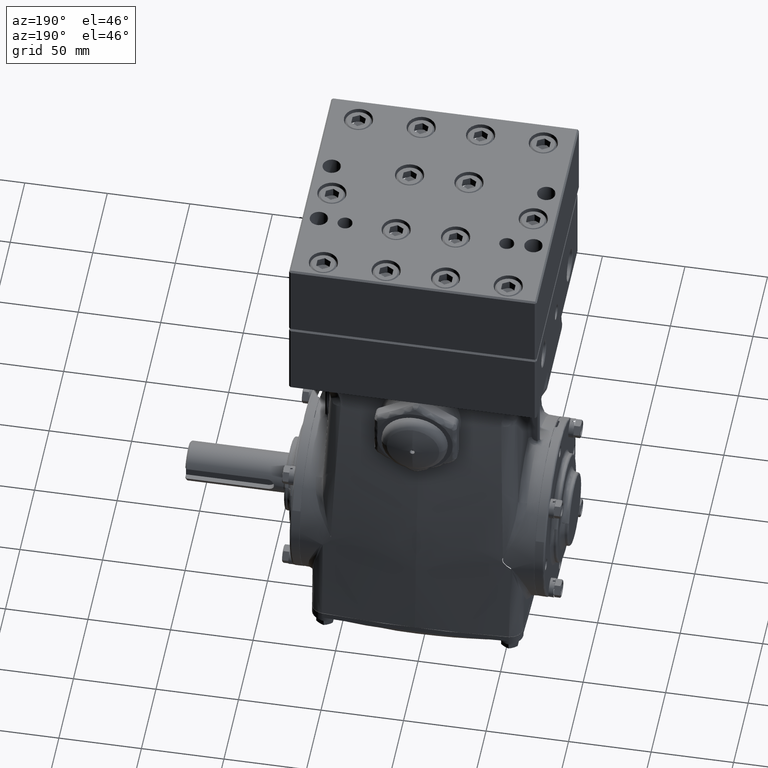
[diagram: clean part render]
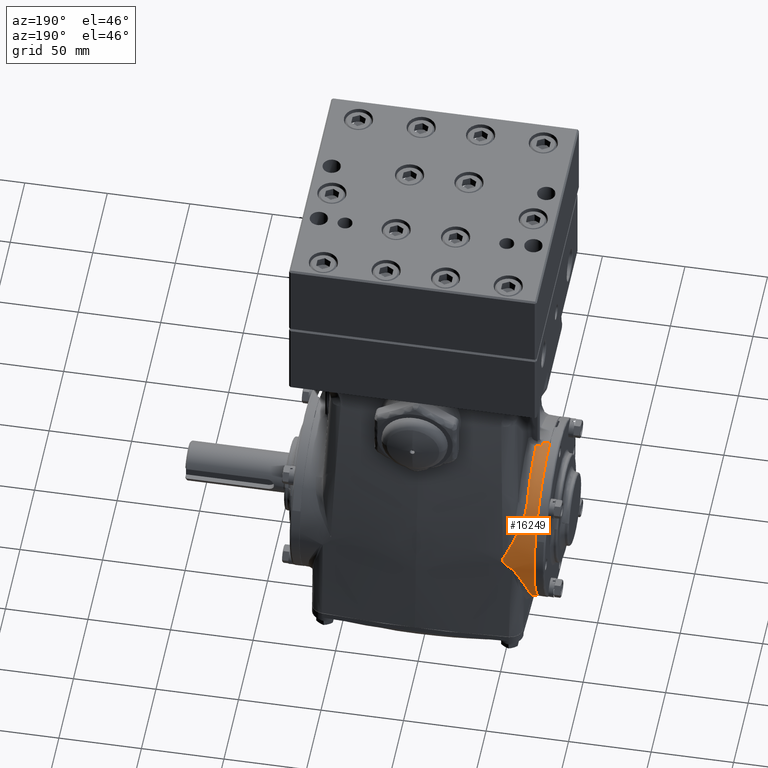
[diagram: same view with one face highlighted and labeled with its STEP entity id]
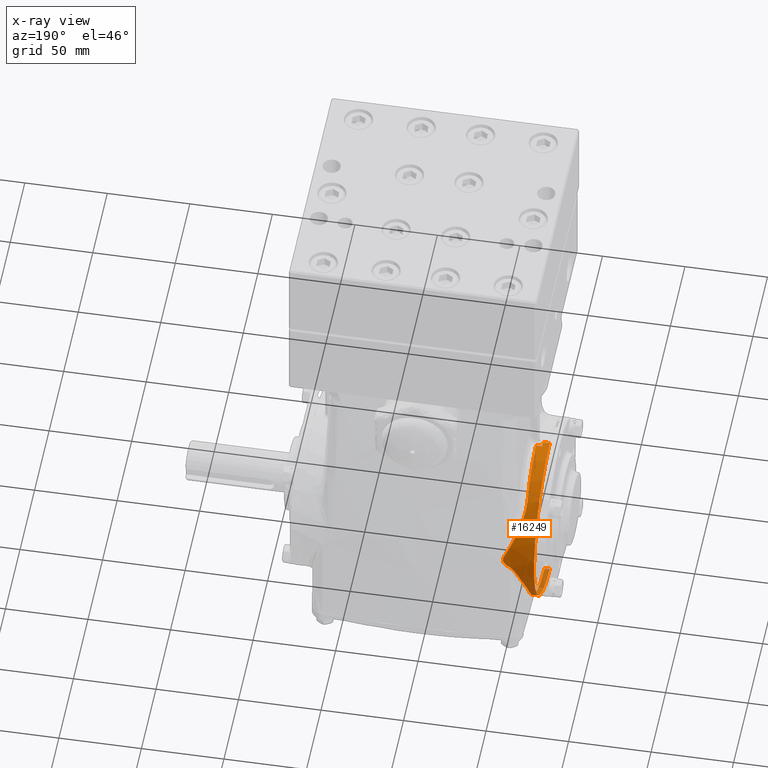
[diagram: x-ray of the same camera — body ghosted, the highlighted face saturated]
A machine part, auxiliary view. The second image highlights one B-rep face of the part: STEP entity #16249.
The next image is the same camera in x-ray: the body ghosted, the highlighted face saturated — about 4% of this face is hidden behind the body in this view.
In plain terms, the highlighted conical surface has half-angle 1.432 deg.
Its self-contained STEP definition (entity closure, byte-faithful):
#144 = CARTESIAN_POINT ( 'NONE',  ( -2.674213100711846813, 0.09220445916533134834, -2.129011245134119878 ) ) ;
#857 = CARTESIAN_POINT ( 'NONE',  ( -2.433689668383447025, 1.814265325992786115, 1.125936763561403042 ) ) ;
#1404 = AXIS2_PLACEMENT_3D ( 'NONE', #52641, #52216, #32115 ) ;
#1411 = EDGE_CURVE ( 'NONE', #45639, #36185, #82076, .T. ) ;
#1506 = CARTESIAN_POINT ( 'NONE',  ( -2.611614131011679607, 1.953446138340607430, -0.8518894944098066579 ) ) ;
#3543 = CARTESIAN_POINT ( 'NONE',  ( -2.795275590551181022, -6.065921084684207584E-32, 0.000000000000000000 ) ) ;
#3583 = CARTESIAN_POINT ( 'NONE',  ( -2.367778985389837665, 2.128595150432312622, -0.1869031318643764594 ) ) ;
#4023 = DIRECTION ( 'NONE',  ( 0.000000000000000000, 5.544652149419485530E-17, 1.000000000000000000 ) ) ;
#4502 = EDGE_LOOP ( 'NONE', ( #15359, #63386, #36855, #76842, #15332, #77794, #68149, #26756, #4894, #40980 ) ) ;
#4894 = ORIENTED_EDGE ( 'NONE', *, *, #38531, .F. ) ;
#4929 = CARTESIAN_POINT ( 'NONE',  ( -2.253474384794850849, 2.139335067782699440, -0.02897014105711796794 ) ) ;
#5088 = CARTESIAN_POINT ( 'NONE',  ( -2.503915078908877323, 1.046633739599244439, 1.859127957345694471 ) ) ;
#5724 = CARTESIAN_POINT ( 'NONE',  ( -2.662967077234981605, 1.021977778432640482, -1.868586286260956575 ) ) ;
#6159 = CARTESIAN_POINT ( 'NONE',  ( -2.672765217870545218, 0.3692536697095555320, -2.097297288627426592 ) ) ;
#6870 = CARTESIAN_POINT ( 'NONE',  ( -2.459356786973228903, 1.762260035235647004, 1.204583766178443538 ) ) ;
#7878 = VECTOR ( 'NONE', #37014, 39.37007874015748143 ) ;
#7926 = CARTESIAN_POINT ( 'NONE',  ( -2.636609844212818743, 1.867263793136128891, -1.025893370523177861 ) ) ;
#8357 = CARTESIAN_POINT ( 'NONE',  ( -2.421371347913226835, 2.114780403209817194, -0.2963912768903275707 ) ) ;
#8719 = AXIS2_PLACEMENT_3D ( 'NONE', #3543, #9140, #42119 ) ;
#9140 = DIRECTION ( 'NONE',  ( 1.000000000000000000, 0.000000000000000000, -4.382719174871368785E-18 ) ) ;
#9607 = CARTESIAN_POINT ( 'NONE',  ( -2.318995028254476232, 2.135545963376624723, -0.1021296468091160703 ) ) ;
#11132 = CARTESIAN_POINT ( 'NONE',  ( -2.066455995131295076, 2.123833213565636147, 0.2952517565246577380 ) ) ;
#12829 = CARTESIAN_POINT ( 'NONE',  ( -2.442660812316131302, 1.797348068771349228, 1.152347434477235533 ) ) ;
#13064 = CARTESIAN_POINT ( 'NONE',  ( -2.578396526791722820, 2.006815403867231229, -0.7184387052893066450 ) ) ;
#13497 = CARTESIAN_POINT ( 'NONE',  ( -2.504932259691062590, 2.075235465970740822, -0.4962313523408666827 ) ) ;
#14707 = VERTEX_POINT ( 'NONE', #78311 ) ;
#15332 = ORIENTED_EDGE ( 'NONE', *, *, #79488, .T. ) ;
#15359 = ORIENTED_EDGE ( 'NONE', *, *, #28878, .F. ) ;
#16249 = ADVANCED_FACE ( 'NONE', ( #41284 ), #70287, .T. ) ;
#16437 = CARTESIAN_POINT ( 'NONE',  ( -2.400645123650289037, 2.121016825696898422, -0.2522796489681907173 ) ) ;
#16458 = CIRCLE ( 'NONE', #76616, 2.125984251968504157 ) ;
#16857 = CARTESIAN_POINT ( 'NONE',  ( -2.289558517188866826, 2.137737940646050383, -0.06239020845379154162 ) ) ;
#17343 = CARTESIAN_POINT ( 'NONE',  ( -2.226839771930154033, 2.140235178456946663, -0.01168351989360031859 ) ) ;
#18604 = CARTESIAN_POINT ( 'NONE',  ( -2.047942761720248583, 2.132668299759482355, 0.2267129716406532658 ) ) ;
#19266 = CARTESIAN_POINT ( 'NONE',  ( -2.268999988163028725, 2.016935381998911758, 0.7222994757913587804 ) ) ;
#19403 = CARTESIAN_POINT ( 'NONE',  ( -2.654131374056228232, 1.366509919037226073, -1.635840865738459105 ) ) ;
#19493 = CARTESIAN_POINT ( 'NONE',  ( -2.637595659439549323, 1.842469967156803001, -1.068593768694690249 ) ) ;
#19502 = CARTESIAN_POINT ( 'NONE',  ( -2.795275590551181022, 1.178784315230913598E-16, 2.125984251968504157 ) ) ;
#19831 = CARTESIAN_POINT ( 'NONE',  ( -2.648813858086076944, 1.534655793872980123, -1.476742552362692695 ) ) ;
#20109 = CARTESIAN_POINT ( 'NONE',  ( -2.467062593457128639, 1.744141122210542738, 1.230340150386247000 ) ) ;
#20546 = CARTESIAN_POINT ( 'NONE',  ( -2.203292787143162457, 2.060377818088014124, 0.5819543737818678730 ) ) ;
#21892 = CARTESIAN_POINT ( 'NONE',  ( -2.053009082777898620, 2.127984562748498121, 0.2659864047022593159 ) ) ;
#24220 = CARTESIAN_POINT ( 'NONE',  ( -2.049233747381173476, 2.135055246015371999, 0.2031275748101670775 ) ) ;
#24378 = CARTESIAN_POINT ( 'NONE',  ( -2.493737155654195625, 0.1328922655559541532, 2.129380987956658089 ) ) ;
#24803 = CARTESIAN_POINT ( 'NONE',  ( -2.494027162866752523, 0.2561653564590450904, 2.121680388083044377 ) ) ;
#25073 = CARTESIAN_POINT ( 'NONE',  ( -2.070415895278807650, 2.139355094043322580, 0.1433268698002481134 ) ) ;
#25232 = CARTESIAN_POINT ( 'NONE',  ( -2.515788031420507664, 1.471742056733628345, 1.543873935989515500 ) ) ;
#25440 = CARTESIAN_POINT ( 'NONE',  ( -2.649348531413402874, 1.518427305832896090, -1.493403393543848212 ) ) ;
#25670 = CARTESIAN_POINT ( 'NONE',  ( -2.494717321873239690, 0.3786866166934474975, 2.103354497728250561 ) ) ;
#26301 = CARTESIAN_POINT ( 'NONE',  ( -2.673111083534315480, 0.3229975887689998104, -2.104910281018374629 ) ) ;
#26591 = CARTESIAN_POINT ( 'NONE',  ( -2.384739640711306397, 1.892210327611904219, 0.9933383953743197825 ) ) ;
#26756 = ORIENTED_EDGE ( 'NONE', *, *, #34360, .F. ) ;
#26891 = VERTEX_POINT ( 'NONE', #76625 ) ;
#27443 = CARTESIAN_POINT ( 'NONE',  ( -2.513853585012312486, 1.563878606752129086, 1.451946259010632012 ) ) ;
#27650 = EDGE_CURVE ( 'NONE', #44733, #72440, #47369, .T. ) ;
#27661 = CARTESIAN_POINT ( 'NONE',  ( -2.571997670785414858, 2.014805814908271042, -0.6961948022735288122 ) ) ;
#28878 = EDGE_CURVE ( 'NONE', #62938, #31395, #61141, .T. ) ;
#29268 = CARTESIAN_POINT ( 'NONE',  ( -2.795275590551181022, -3.799102800271908455E-16, -2.125984251968504157 ) ) ;
#29325 = CARTESIAN_POINT ( 'NONE',  ( -2.356271691135446655, 2.130658987081584854, -0.1653658590589018873 ) ) ;
#29734 = CARTESIAN_POINT ( 'NONE',  ( -2.450903707374337159, 2.103626349546162011, -0.3629850883206079959 ) ) ;
#30178 = CARTESIAN_POINT ( 'NONE',  ( -2.795275590551181022, -6.065921084684207584E-32, 0.000000000000000000 ) ) ;
#30429 = VERTEX_POINT ( 'NONE', #19502 ) ;
#30646 = CARTESIAN_POINT ( 'NONE',  ( -2.151930763831655824, 2.141590353209538833, 0.04661990962176179587 ) ) ;
#30805 = CARTESIAN_POINT ( 'NONE',  ( -2.505708188655874746, 1.126954218850235723, 1.811516318501217304 ) ) ;
#30966 = B_SPLINE_CURVE_WITH_KNOTS ( 'NONE', 3,
 ( #58957, #60240, #72653, #40087 ),
 .UNSPECIFIED., .F., .F.,
 ( 4, 4 ),
 ( 0.000000000000000000, 0.003610216827646769988 ),
 .UNSPECIFIED. ) ;
#31070 = CARTESIAN_POINT ( 'NONE',  ( -2.117602679647121011, 2.141476616385341369, 0.07977551856538772634 ) ) ;
#31232 = CARTESIAN_POINT ( 'NONE',  ( -2.500193927158772311, 0.8539035844348655813, 1.957934506992622836 ) ) ;
#31395 = VERTEX_POINT ( 'NONE', #52082 ) ;
#32115 = DIRECTION ( 'NONE',  ( 0.000000000000000000, 5.544652149419485530E-17, 1.000000000000000000 ) ) ;
#32291 = CARTESIAN_POINT ( 'NONE',  ( -2.644558561933787022, 1.658359136561663227, -1.337106508342973399 ) ) ;
#33008 = CARTESIAN_POINT ( 'NONE',  ( -2.515788031420507664, 1.471742056733628345, 1.543873935989515500 ) ) ;
#33426 = CARTESIAN_POINT ( 'NONE',  ( -2.488017827612574617, 1.688032755309611943, 1.306544832349328500 ) ) ;
#34076 = CARTESIAN_POINT ( 'NONE',  ( -2.632625855243919233, 1.890380042259838245, -0.9828211631979839602 ) ) ;
#34360 = EDGE_CURVE ( 'NONE', #26891, #44733, #38075, .T. ) ;
#35734 = CARTESIAN_POINT ( 'NONE',  ( -2.331842010525637665, 2.134135799984190118, -0.1229999275891138361 ) ) ;
#36185 = VERTEX_POINT ( 'NONE', #55400 ) ;
#36217 = CARTESIAN_POINT ( 'NONE',  ( -2.052624549702108059, 2.136410755026618702, 0.1872953730394325000 ) ) ;
#36583 = DIRECTION ( 'NONE',  ( -1.000000000000000000, 0.000000000000000000, 4.382719174871368785E-18 ) ) ;
#36813 = CARTESIAN_POINT ( 'NONE',  ( -2.515788031420507664, 1.471742056733628345, 1.543873935989515500 ) ) ;
#36855 = ORIENTED_EDGE ( 'NONE', *, *, #84502, .T. ) ;
#37014 = DIRECTION ( 'NONE',  ( 0.9996875574981407553, 1.385927240283195653E-18, 0.02499574730631748398 ) ) ;
#37691 = VECTOR ( 'NONE', #82911, 39.37007874015748143 ) ;
#38073 = CARTESIAN_POINT ( 'NONE',  ( -2.506338786346071767, 1.153408163138216924, 1.794772379993768041 ) ) ;
#38075 = B_SPLINE_CURVE_WITH_KNOTS ( 'NONE', 3,
 ( #4929, #17343, #76016, #56329, #30646, #82881, #31070, #57175, #70045, #25073, #77297, #36217, #24220, #18604, #76444, #83733, #62355, #75586 ),
 .UNSPECIFIED., .F., .F.,
 ( 4, 2, 2, 2, 2, 2, 2, 2, 4 ),
 ( 8.080798162022950091E-17, 0.002411326274356013263, 0.003616989411533987585, 0.004822652548711961473, 0.006028315685889935362, 0.007233978823067910117, 0.008439641960245885741, 0.009042473528834872251, 0.009645305097423858762 ),
 .UNSPECIFIED. ) ;
#38274 = CARTESIAN_POINT ( 'NONE',  ( -2.641456466957074145, 1.743588930305946194, -1.226671725202621799 ) ) ;
#38531 = EDGE_CURVE ( 'NONE', #47888, #26891, #79787, .T. ) ;
#38689 = CARTESIAN_POINT ( 'NONE',  ( -2.660192766900450589, 1.143043784224609061, -1.798972107766665607 ) ) ;
#39630 = CARTESIAN_POINT ( 'NONE',  ( -2.487770655296931199, 2.085781194500540447, -0.4518101348641363479 ) ) ;
#40087 = CARTESIAN_POINT ( 'NONE',  ( -2.493737155654195625, 0.1328922655559541532, 2.129380987956658089 ) ) ;
#40250 = CARTESIAN_POINT ( 'NONE',  ( -2.189956210657550528, 2.068489951388319703, 0.5537197176874877336 ) ) ;
#40980 = ORIENTED_EDGE ( 'NONE', *, *, #53767, .F. ) ;
#41284 = FACE_OUTER_BOUND ( 'NONE', #4502, .T. ) ;
#42119 = DIRECTION ( 'NONE',  ( 0.000000000000000000, 5.544652149419485530E-17, 1.000000000000000000 ) ) ;
#42159 = CARTESIAN_POINT ( 'NONE',  ( -2.297234584015314773, 2.137243118489835947, -0.07214601117896257687 ) ) ;
#42996 = CARTESIAN_POINT ( 'NONE',  ( -2.431428662644409489, 2.111296897163809749, -0.3186008543163052487 ) ) ;
#43423 = CARTESIAN_POINT ( 'NONE',  ( -2.795275590551181022, 1.178784315230913598E-16, 2.125984251968504157 ) ) ;
#43700 = CARTESIAN_POINT ( 'NONE',  ( -2.053009082777898620, 2.127984562748498121, 0.2659864047022593159 ) ) ;
#44269 = CARTESIAN_POINT ( 'NONE',  ( -2.669889708392947814, 0.6394416007698479065, -2.032928589424304544 ) ) ;
#44689 = CARTESIAN_POINT ( 'NONE',  ( -2.663862085655700263, 0.9805955468574142353, -1.890604300765717394 ) ) ;
#44733 = VERTEX_POINT ( 'NONE', #21892 ) ;
#44913 = CARTESIAN_POINT ( 'NONE',  ( -2.498518163271897130, 0.7385959817677200112, 2.002430845912647417 ) ) ;
#45117 = CARTESIAN_POINT ( 'NONE',  ( -2.647207998187497413, 1.582405062089980108, -1.425518607116231573 ) ) ;
#45531 = CARTESIAN_POINT ( 'NONE',  ( -2.639462562493321673, 1.795516270175573359, -1.149458317731812507 ) ) ;
#45621 = CARTESIAN_POINT ( 'NONE',  ( -2.620134399658577973, 1.933471950044749921, -0.8958186313543933244 ) ) ;
#45639 = VERTEX_POINT ( 'NONE', #71910 ) ;
#45825 = CARTESIAN_POINT ( 'NONE',  ( -2.499135386112816271, 1.648299130417571146, 1.355929305872068724 ) ) ;
#45967 = CARTESIAN_POINT ( 'NONE',  ( -2.637595659439549323, 1.842469967156803001, -1.068593768694690249 ) ) ;
#47369 = B_SPLINE_CURVE_WITH_KNOTS ( 'NONE', 3,
 ( #43700, #69841, #11132, #63417, #52679, #72812, #71140, #65557, #78805, #40250, #20546, #19266, #51825, #26591, #58263, #857, #12829, #6870, #20109, #33426, #45825, #27443, #59544, #33008 ),
 .UNSPECIFIED., .F., .F.,
 ( 4, 2, 2, 2, 2, 2, 2, 2, 2, 2, 2, 4 ),
 ( 0.0005242676182009582252, 0.001761302265534925608, 0.002998336912868893207, 0.005472406207536827105, 0.007946475502204760136, 0.01042054479687269317, 0.02031682197554442529, 0.02526496056488028788, 0.02773902985954822265, 0.03021309915421615741, 0.03516123774355200265, 0.04010937633288783749 ),
 .UNSPECIFIED. ) ;
#47888 = VERTEX_POINT ( 'NONE', #56461 ) ;
#49102 = CARTESIAN_POINT ( 'NONE',  ( -2.795275590551181022, -3.782364124441823362E-16, -2.125984251968504157 ) ) ;
#51099 = CARTESIAN_POINT ( 'NONE',  ( -2.671478390218202659, 0.5055604446529387008, -2.068700662797995360 ) ) ;
#51825 = CARTESIAN_POINT ( 'NONE',  ( -2.318538311934954965, 1.973070316823982040, 0.8319326649172094079 ) ) ;
#52082 = CARTESIAN_POINT ( 'NONE',  ( -2.674213100711848590, -4.728579433848398680E-16, -2.129011245134118990 ) ) ;
#52216 = DIRECTION ( 'NONE',  ( -1.000000000000000000, 0.000000000000000000, 4.382719174871368785E-18 ) ) ;
#52390 = CARTESIAN_POINT ( 'NONE',  ( -2.658219563924653972, 1.219976855289391482, -1.747725901029767215 ) ) ;
#52641 = CARTESIAN_POINT ( 'NONE',  ( -2.635827106511295703, -6.065921084684207584E-32, 0.000000000000000000 ) ) ;
#52679 = CARTESIAN_POINT ( 'NONE',  ( -2.087143312717082644, 2.116805226615381841, 0.3387596182034655068 ) ) ;
#53632 = EDGE_CURVE ( 'NONE', #30429, #62938, #16458, .T. ) ;
#53767 = EDGE_CURVE ( 'NONE', #31395, #47888, #63608, .T. ) ;
#54599 = CARTESIAN_POINT ( 'NONE',  ( -2.272927073225366357, 2.138605642037588961, -0.04428091431531905320 ) ) ;
#54797 = B_SPLINE_CURVE_WITH_KNOTS ( 'NONE', 3,
 ( #25232, #64633, #77460, #38073, #30805, #71491, #5088, #70203, #31232, #44913, #56489, #77890, #25670, #24803, #24378 ),
 .UNSPECIFIED., .F., .F.,
 ( 4, 2, 2, 2, 1, 2, 2, 4 ),
 ( 0.000000000000000000, 0.009505825380862396173, 0.01188228172607799261, 0.01425873807129358906, 0.01901165076172478194, 0.02376456345215597829, 0.02851747614258717117, 0.03802330152344955000 ),
 .UNSPECIFIED. ) ;
#55400 = CARTESIAN_POINT ( 'NONE',  ( -2.635827106511295703, 0.1328843788819236149, 2.125821802833860019 ) ) ;
#55840 = CARTESIAN_POINT ( 'NONE',  ( -2.264018022240619210, 2.138978747957120063, -0.03581326159110850837 ) ) ;
#56329 = CARTESIAN_POINT ( 'NONE',  ( -2.163951034222194814, 2.141484851680152346, 0.03630347271766833778 ) ) ;
#56461 = CARTESIAN_POINT ( 'NONE',  ( -2.637595659439549323, 1.842469967156803001, -1.068593768694690249 ) ) ;
#56489 = CARTESIAN_POINT ( 'NONE',  ( -2.497029492486315672, 0.6211392241596027652, 2.041959402627709252 ) ) ;
#57175 = CARTESIAN_POINT ( 'NONE',  ( -2.096922746239215929, 2.140966567908245466, 0.1037533168227870589 ) ) ;
#58263 = CARTESIAN_POINT ( 'NONE',  ( -2.405440990237038612, 1.862727010143195638, 1.046630795474950748 ) ) ;
#58957 = CARTESIAN_POINT ( 'NONE',  ( -2.635827106511295703, 0.1328843788819236149, 2.125821802833860019 ) ) ;
#59544 = CARTESIAN_POINT ( 'NONE',  ( -2.517494023435595363, 1.519197775619397506, 1.498576480357006080 ) ) ;
#60202 = CARTESIAN_POINT ( 'NONE',  ( -2.596079569813532828, 1.981135160959059061, -0.7852977795466467015 ) ) ;
#60240 = CARTESIAN_POINT ( 'NONE',  ( -2.588463789642426516, 0.1328870120019319812, 2.127008201198833603 ) ) ;
#61141 = LINE ( 'NONE', #49102, #37691 ) ;
#62355 = CARTESIAN_POINT ( 'NONE',  ( -2.051070710530038532, 2.128999075677172392, 0.2582607092334724963 ) ) ;
#62938 = VERTEX_POINT ( 'NONE', #29268 ) ;
#63386 = ORIENTED_EDGE ( 'NONE', *, *, #53632, .F. ) ;
#63417 = CARTESIAN_POINT ( 'NONE',  ( -2.080219982731883022, 2.119245663976616179, 0.3242887612451414436 ) ) ;
#63608 = B_SPLINE_CURVE_WITH_KNOTS ( 'NONE', 3,
 ( #71271, #144, #84105, #26301, #6159, #70419, #51099, #44269, #76808, #77663, #77241, #44689, #5724, #38689, #52390, #19403, #78523, #25440, #19831, #70844, #45117, #64840, #32291, #38274, #45531, #45967 ),
 .UNSPECIFIED., .F., .F.,
 ( 4, 2, 2, 2, 2, 2, 2, 2, 2, 2, 2, 2, 4 ),
 ( 0.05676191307346302450, 0.06385649279245729504, 0.06740378265195443030, 0.07095107251145155169, 0.07804565223044582223, 0.08159294208994294362, 0.08514023194944006501, 0.09223481166843429391, 0.09932939138742852281, 0.1011030363171770696, 0.1028766812469256442, 0.1064239711064227656, 0.1135185508254169667 ),
 .UNSPECIFIED. ) ;
#64633 = CARTESIAN_POINT ( 'NONE',  ( -2.512531095173924811, 1.381143595791431977, 1.630352022535442202 ) ) ;
#64840 = CARTESIAN_POINT ( 'NONE',  ( -2.645611163643341257, 1.628722084624372402, -1.373017620904652070 ) ) ;
#65557 = CARTESIAN_POINT ( 'NONE',  ( -2.149266100056735240, 2.090535779911462111, 0.4682673622006972014 ) ) ;
#65784 = CARTESIAN_POINT ( 'NONE',  ( -2.460334127482243005, 2.099435925999025176, -0.3851893859959998334 ) ) ;
#68149 = ORIENTED_EDGE ( 'NONE', *, *, #27650, .F. ) ;
#69841 = CARTESIAN_POINT ( 'NONE',  ( -2.059568972017456367, 2.125980063762961780, 0.2807006665907257892 ) ) ;
#70045 = CARTESIAN_POINT ( 'NONE',  ( -2.087339423217606349, 2.140568111131683438, 0.1163468886655521228 ) ) ;
#70203 = CARTESIAN_POINT ( 'NONE',  ( -2.502239974578637671, 0.9649577718154701556, 1.903606377951276629 ) ) ;
#70287 = CONICAL_SURFACE ( 'NONE', #8719, 2.125984251968504157, 0.02499835087631483571 ) ;
#70419 = CARTESIAN_POINT ( 'NONE',  ( -2.671949241928070595, 0.4604519964451416758, -2.079200573250728823 ) ) ;
#70844 = CARTESIAN_POINT ( 'NONE',  ( -2.647743888551647995, 1.566636320473507427, -1.442810299648261241 ) ) ;
#71140 = CARTESIAN_POINT ( 'NONE',  ( -2.121747569332259165, 2.103271559763260967, 0.4108664398746748603 ) ) ;
#71271 = CARTESIAN_POINT ( 'NONE',  ( -2.674213100711848590, -4.728579433848398680E-16, -2.129011245134118990 ) ) ;
#71491 = CARTESIAN_POINT ( 'NONE',  ( -2.504496908197115790, 1.073589570473952204, 1.843678885738478934 ) ) ;
#71790 = CARTESIAN_POINT ( 'NONE',  ( -2.590432388134312092, 1.989990240059235305, -0.7629667914849963539 ) ) ;
#71910 = CARTESIAN_POINT ( 'NONE',  ( -2.635827106511295703, 1.180994845869164187E-16, 2.129971031623349997 ) ) ;
#72204 = CARTESIAN_POINT ( 'NONE',  ( -2.536936585567988622, 2.051127212928969712, -0.5850738871081627712 ) ) ;
#72440 = VERTEX_POINT ( 'NONE', #36813 ) ;
#72653 = CARTESIAN_POINT ( 'NONE',  ( -2.541100472689929557, 0.1328896408864844447, 2.128194596234618263 ) ) ;
#72812 = CARTESIAN_POINT ( 'NONE',  ( -2.107907215706399384, 2.109039939566984767, 0.3820906069614372069 ) ) ;
#73882 = CARTESIAN_POINT ( 'NONE',  ( -2.253474384794850849, 2.139335067782699440, -0.02897014105711796794 ) ) ;
#74696 = CARTESIAN_POINT ( 'NONE',  ( -2.389972388588445185, 2.123773769501480668, -0.2303563304776941323 ) ) ;
#75586 = CARTESIAN_POINT ( 'NONE',  ( -2.053009082777898620, 2.127984562748498121, 0.2659864047022593159 ) ) ;
#75964 = LINE ( 'NONE', #43423, #7878 ) ;
#76016 = CARTESIAN_POINT ( 'NONE',  ( -2.200946752931430161, 2.140926309954696460, 0.006560008790992016663 ) ) ;
#76444 = CARTESIAN_POINT ( 'NONE',  ( -2.048115291841310359, 2.131812174327038178, 0.2345886730875641479 ) ) ;
#76616 = AXIS2_PLACEMENT_3D ( 'NONE', #30178, #36583, #4023 ) ;
#76625 = CARTESIAN_POINT ( 'NONE',  ( -2.253474384794850849, 2.139335067782699440, -0.02897014105711796794 ) ) ;
#76808 = CARTESIAN_POINT ( 'NONE',  ( -2.668595733800589898, 0.7267760914884860979, -2.003401781462314624 ) ) ;
#76842 = ORIENTED_EDGE ( 'NONE', *, *, #1411, .T. ) ;
#77241 = CARTESIAN_POINT ( 'NONE',  ( -2.665552481601454637, 0.8971246641472204741, -1.931564028516423281 ) ) ;
#77297 = CARTESIAN_POINT ( 'NONE',  ( -2.063207345101013779, 2.138543991902458252, 0.1575601654328049883 ) ) ;
#77460 = CARTESIAN_POINT ( 'NONE',  ( -2.509598941434300734, 1.283714207699584664, 1.708207320038651167 ) ) ;
#77493 = EDGE_CURVE ( 'NONE', #72440, #14707, #54797, .T. ) ;
#77663 = CARTESIAN_POINT ( 'NONE',  ( -2.666351239691660435, 0.8548985500815410310, -1.950591760190255597 ) ) ;
#77794 = ORIENTED_EDGE ( 'NONE', *, *, #77493, .F. ) ;
#77890 = CARTESIAN_POINT ( 'NONE',  ( -2.496378292944292365, 0.5612928552407832061, 2.059250695251111374 ) ) ;
#78311 = CARTESIAN_POINT ( 'NONE',  ( -2.493737155654195625, 0.1328922655559541532, 2.129380987956658089 ) ) ;
#78523 = CARTESIAN_POINT ( 'NONE',  ( -2.652016088880778888, 1.436109654293630244, -1.575201717937278589 ) ) ;
#78614 = CARTESIAN_POINT ( 'NONE',  ( -2.551775862697584163, 2.037565885133518329, -0.6294967611463615498 ) ) ;
#78805 = CARTESIAN_POINT ( 'NONE',  ( -2.162952424221472825, 2.083565017657990737, 0.4968951659755471706 ) ) ;
#79488 = EDGE_CURVE ( 'NONE', #36185, #14707, #30966, .T. ) ;
#79787 = B_SPLINE_CURVE_WITH_KNOTS ( 'NONE', 3,
 ( #19493, #7926, #34076, #45621, #1506, #60202, #71790, #13064, #27661, #78614, #72204, #13497, #39630, #65784, #29734, #42996, #8357, #16437, #74696, #3583, #29325, #35734, #9607, #42159, #16857, #54599, #55840, #73882 ),
 .UNSPECIFIED., .F., .F.,
 ( 4, 2, 2, 2, 2, 2, 2, 2, 2, 2, 2, 2, 2, 4 ),
 ( 0.000000000000000000, 0.003729478340027125426, 0.007458956680054250853, 0.009323695850067814650, 0.01118843502008137585, 0.01491791336010850171, 0.01864739170013562930, 0.02051213087014919570, 0.02237687004016275863, 0.02424160921017632503, 0.02610634838018989143, 0.02797108755020345783, 0.02890345713521023582, 0.02983582672021701035 ),
 .UNSPECIFIED. ) ;
#82076 = CIRCLE ( 'NONE', #1404, 2.129971031623350441 ) ;
#82881 = CARTESIAN_POINT ( 'NONE',  ( -2.128748904580759049, 2.141586583927418630, 0.06836013753219859213 ) ) ;
#82911 = DIRECTION ( 'NONE',  ( 0.9996875574981407553, -4.447023433380974267E-18, -0.02499574730631749092 ) ) ;
#83733 = CARTESIAN_POINT ( 'NONE',  ( -2.049675535348338684, 2.129977349496798400, 0.2503680299623711192 ) ) ;
#84105 = CARTESIAN_POINT ( 'NONE',  ( -2.673938078400615037, 0.1844786151598803436, -2.123054379433383154 ) ) ;
#84502 = EDGE_CURVE ( 'NONE', #30429, #45639, #75964, .T. ) ;